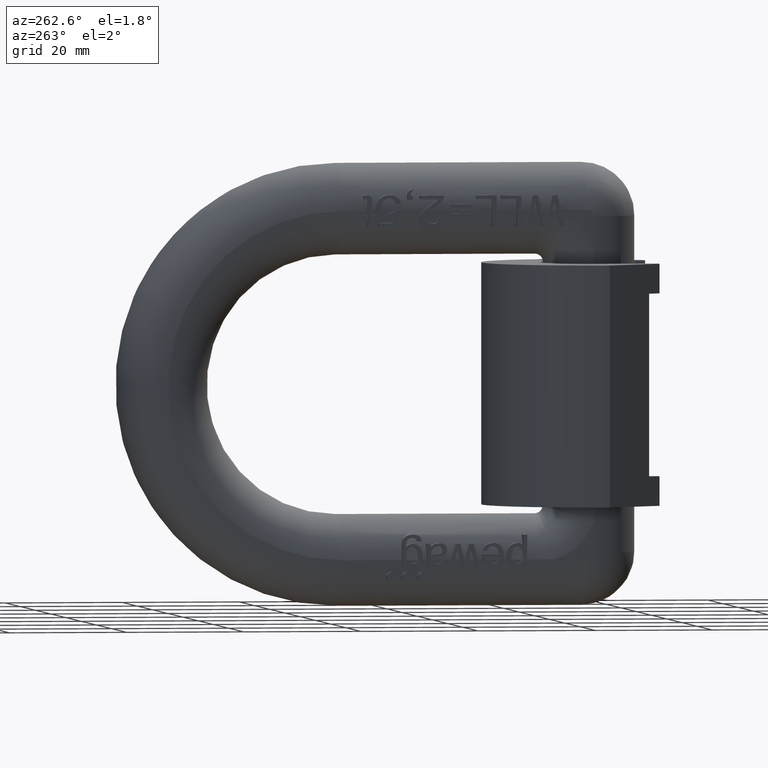
[diagram: clean part render]
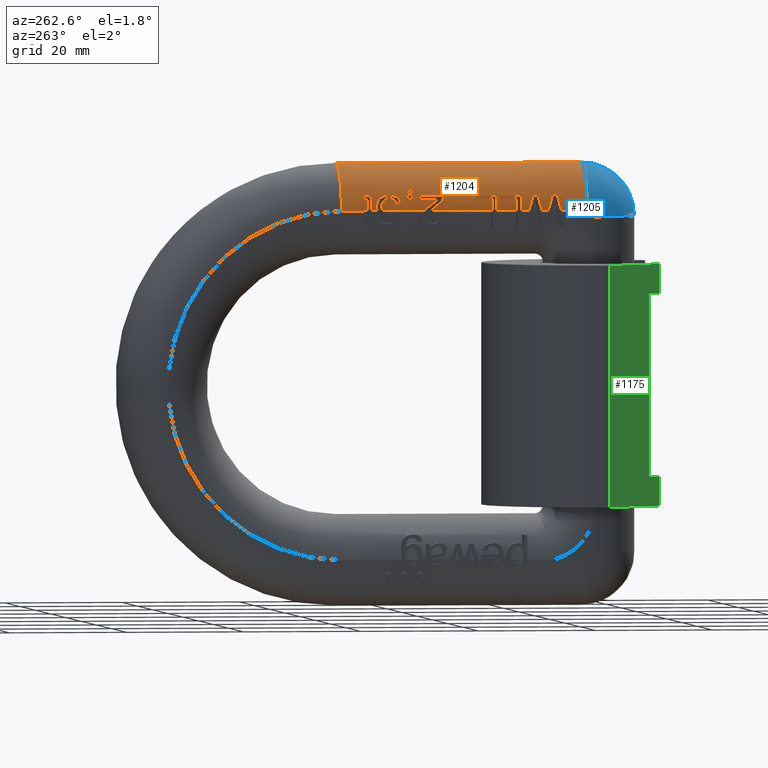
[diagram: same view with three faces highlighted in distinct colors, each labeled with its STEP entity id]
A machine part, auxiliary view with three faces highlighted in distinct colors.
Their STEP definitions:

[orange] entity #1204 — the highlighted cylindrical surface (partial cylindrical patch) has radius 7.9 mm, axis along (0, -1, -0).
#203=FACE_BOUND('',#2371,.T.);
#204=FACE_BOUND('',#2372,.T.);
#205=FACE_BOUND('',#2373,.T.);
#278=ELLIPSE('',#9136,8.19995093487426,7.9);
#279=ELLIPSE('',#9137,8.20452221586404,7.9);
#280=ELLIPSE('',#9138,8.20889471213355,7.9);
#281=ELLIPSE('',#9139,8.18101484427938,7.9);
#282=ELLIPSE('',#9141,8.00690483020782,7.9);
#283=ELLIPSE('',#9142,108.426175648776,7.9);
#284=ELLIPSE('',#9143,70.9657102516925,7.9);
#285=ELLIPSE('',#9144,8.08964639558422,7.9);
#286=ELLIPSE('',#9155,9.93877498677383,7.9);
#398=B_SPLINE_CURVE_WITH_KNOTS('',3,(#12463,#12464,#12465,#12466,#12467,
#12468,#12469,#12470,#12471,#12472),.UNSPECIFIED.,.F.,.F.,(4,3,3,4),(0.,
0.15611095960509,0.755592152615483,1.),.UNSPECIFIED.);
#399=B_SPLINE_CURVE_WITH_KNOTS('',3,(#12474,#12475,#12476,#12477,#12478,
#12479,#12480,#12481,#12482,#12483),.UNSPECIFIED.,.F.,.F.,(4,3,3,4),(0.,
0.2594963848949,0.515020583803003,1.),.UNSPECIFIED.);
#400=B_SPLINE_CURVE_WITH_KNOTS('',3,(#12485,#12486,#12487,#12488,#12489,
#12490,#12491,#12492,#12493,#12494),.UNSPECIFIED.,.F.,.F.,(4,3,3,4),(0.,
0.314000219350799,0.649300134811863,1.),.UNSPECIFIED.);
#401=B_SPLINE_CURVE_WITH_KNOTS('',3,(#12496,#12497,#12498,#12499,#12500,
#12501,#12502,#12503,#12504,#12505),.UNSPECIFIED.,.F.,.F.,(4,3,3,4),(0.,
0.31068628129509,0.65485272519181,1.),.UNSPECIFIED.);
#402=B_SPLINE_CURVE_WITH_KNOTS('',3,(#12509,#12510,#12511,#12512,#12513,
#12514,#12515,#12516,#12517,#12518,#12519,#12520,#12521,#12522,#12523,#12524),
 .UNSPECIFIED.,.F.,.F.,(4,3,3,3,3,4),(0.,0.142793714237207,0.284760607649526,
0.444886016678857,0.765931278787866,1.),.UNSPECIFIED.);
#403=B_SPLINE_CURVE_WITH_KNOTS('',3,(#12526,#12527,#12528,#12529,#12530,
#12531,#12532,#12533,#12534,#12535,#12536,#12537,#12538),.UNSPECIFIED.,
 .F.,.F.,(4,3,3,3,4),(0.,0.379541550111413,0.686883171664488,0.949753172442192,
1.),.UNSPECIFIED.);
#404=B_SPLINE_CURVE_WITH_KNOTS('',3,(#12542,#12543,#12544,#12545,#12546,
#12547,#12548,#12549,#12550,#12551,#12552,#12553,#12554),.UNSPECIFIED.,
 .F.,.F.,(4,3,3,3,4),(0.,0.292017422250418,0.585648753779201,0.862182757325543,
1.),.UNSPECIFIED.);
#405=B_SPLINE_CURVE_WITH_KNOTS('',3,(#12556,#12557,#12558,#12559,#12560,
#12561,#12562,#12563,#12564,#12565,#12566,#12567,#12568,#12569,#12570,#12571),
 .UNSPECIFIED.,.F.,.F.,(4,3,3,3,3,4),(0.,0.20628484828075,0.460926422470442,
0.727199218420896,0.926445889526381,1.),.UNSPECIFIED.);
#406=B_SPLINE_CURVE_WITH_KNOTS('',3,(#12573,#12574,#12575,#12576,#12577,
#12578,#12579,#12580,#12581,#12582),.UNSPECIFIED.,.F.,.F.,(4,3,3,4),(0.,
0.261026374131118,0.659349936590559,1.),.UNSPECIFIED.);
#407=B_SPLINE_CURVE_WITH_KNOTS('',3,(#12586,#12587,#12588,#12589,#12590,
#12591,#12592,#12593,#12594,#12595),.UNSPECIFIED.,.F.,.F.,(4,3,3,4),(0.,
0.288332530668254,0.719706849259617,1.),.UNSPECIFIED.);
#408=B_SPLINE_CURVE_WITH_KNOTS('',3,(#12597,#12598,#12599,#12600,#12601,
#12602,#12603,#12604,#12605,#12606,#12607,#12608,#12609,#12610,#12611,#12612,
#12613,#12614,#12615,#12616,#12617,#12618,#12619,#12620,#12621,#12622,#12623,
#12624),.UNSPECIFIED.,.F.,.F.,(4,3,3,3,3,3,3,3,3,4),(0.,0.0931781078712239,
0.185863827446779,0.32521098028367,0.431329613749867,0.537491665694663,
0.648009055897674,0.761221396077633,0.880634140115405,1.),.UNSPECIFIED.);
#409=B_SPLINE_CURVE_WITH_KNOTS('',3,(#12625,#12626,#12627,#12628),
 .UNSPECIFIED.,.F.,.F.,(4,4),(0.,1.),.UNSPECIFIED.);
#410=B_SPLINE_CURVE_WITH_KNOTS('',3,(#12636,#12637,#12638,#12639,#12640,
#12641,#12642,#12643,#12644,#12645),.UNSPECIFIED.,.F.,.F.,(4,3,3,4),(0.,
0.346337008765576,0.672703122863948,1.),.UNSPECIFIED.);
#411=B_SPLINE_CURVE_WITH_KNOTS('',3,(#12647,#12648,#12649,#12650,#12651,
#12652,#12653,#12654,#12655,#12656),.UNSPECIFIED.,.F.,.F.,(4,3,3,4),(0.,
0.19038797136079,0.594962802619252,1.),.UNSPECIFIED.);
#412=B_SPLINE_CURVE_WITH_KNOTS('',3,(#12658,#12659,#12660,#12661,#12662,
#12663,#12664,#12665,#12666,#12667),.UNSPECIFIED.,.F.,.F.,(4,3,3,4),(0.,
0.27016004292502,0.540233783040903,1.),.UNSPECIFIED.);
#413=B_SPLINE_CURVE_WITH_KNOTS('',3,(#12675,#12676,#12677,#12678,#12679,
#12680,#12681,#12682,#12683,#12684),.UNSPECIFIED.,.F.,.F.,(4,3,3,4),(0.,
0.361978411648367,0.677869179303933,1.),.UNSPECIFIED.);
#414=B_SPLINE_CURVE_WITH_KNOTS('',3,(#12686,#12687,#12688,#12689,#12690,
#12691,#12692,#12693,#12694,#12695,#12696,#12697,#12698),.UNSPECIFIED.,
 .F.,.F.,(4,3,3,3,4),(0.,0.37220228558075,0.676693738782447,0.93763299819061,
1.),.UNSPECIFIED.);
#415=B_SPLINE_CURVE_WITH_KNOTS('',3,(#12740,#12741,#12742,#12743,#12744,
#12745,#12746,#12747,#12748,#12749),.UNSPECIFIED.,.F.,.F.,(4,3,3,4),(0.,
0.277291417604665,0.636594682180537,1.),.UNSPECIFIED.);
#416=B_SPLINE_CURVE_WITH_KNOTS('',3,(#12751,#12752,#12753,#12754,#12755,
#12756,#12757,#12758,#12759,#12760),.UNSPECIFIED.,.F.,.F.,(4,3,3,4),(0.,
0.27958135560563,0.55660353302604,1.),.UNSPECIFIED.);
#417=B_SPLINE_CURVE_WITH_KNOTS('',3,(#12764,#12765,#12766,#12767,#12768,
#12769,#12770,#12771,#12772,#12773,#12774,#12775,#12776),.UNSPECIFIED.,
 .F.,.F.,(4,3,3,3,4),(0.,0.390441392324048,0.613989655508433,0.838185748972213,
1.),.UNSPECIFIED.);
#1120=CYLINDRICAL_SURFACE('',#9156,7.9);
#1204=ADVANCED_FACE('',(#203,#204,#205),#1120,.T.);
#2371=EDGE_LOOP('',(#3265,#3266,#3267,#3268,#3269,#3270,#3271,#3272,#3273,
#3274,#3275,#3276,#3277,#3278,#3279,#3280,#3281,#3282,#3283,#3284,#3285,
#3286,#3287,#3288,#3289,#3290,#3291,#3292,#3293,#3294,#3295,#3296,#3297,
#3298,#3299,#3300,#3301,#3302,#3303,#3304,#3305,#3306,#3307,#3308,#3309,
#3310,#3311,#3312,#3313,#3314,#3315,#3316));
#2372=EDGE_LOOP('',(#3317,#3318,#3319,#3320));
#2373=EDGE_LOOP('',(#3321,#3322,#3323,#3324,#3325,#3326,#3327));
#2856=CIRCLE('',#9132,7.9);
#2858=CIRCLE('',#9140,7.9);
#2859=CIRCLE('',#9145,7.9);
#2860=CIRCLE('',#9146,7.9);
#2861=CIRCLE('',#9147,7.9);
#2862=CIRCLE('',#9148,7.9);
#2863=CIRCLE('',#9149,7.9);
#2864=CIRCLE('',#9150,7.9);
#2865=CIRCLE('',#9151,7.9);
#2866=CIRCLE('',#9152,7.9);
#2867=CIRCLE('',#9153,7.9);
#2868=CIRCLE('',#9154,7.9);
#3265=ORIENTED_EDGE('',*,*,#6686,.F.);
#3266=ORIENTED_EDGE('',*,*,#6687,.F.);
#3267=ORIENTED_EDGE('',*,*,#6688,.F.);
#3268=ORIENTED_EDGE('',*,*,#6689,.T.);
#3269=ORIENTED_EDGE('',*,*,#6690,.F.);
#3270=ORIENTED_EDGE('',*,*,#6691,.F.);
#3271=ORIENTED_EDGE('',*,*,#6692,.F.);
#3272=ORIENTED_EDGE('',*,*,#6556,.F.);
#3273=ORIENTED_EDGE('',*,*,#6693,.F.);
#3274=ORIENTED_EDGE('',*,*,#6537,.F.);
#3275=ORIENTED_EDGE('',*,*,#6681,.T.);
#3276=ORIENTED_EDGE('',*,*,#6694,.T.);
#3277=ORIENTED_EDGE('',*,*,#6695,.F.);
#3278=ORIENTED_EDGE('',*,*,#6696,.F.);
#3279=ORIENTED_EDGE('',*,*,#6697,.F.);
#3280=ORIENTED_EDGE('',*,*,#6698,.F.);
#3281=ORIENTED_EDGE('',*,*,#6699,.F.);
#3282=ORIENTED_EDGE('',*,*,#6700,.F.);
#3283=ORIENTED_EDGE('',*,*,#6701,.F.);
#3284=ORIENTED_EDGE('',*,*,#6702,.T.);
#3285=ORIENTED_EDGE('',*,*,#6703,.F.);
#3286=ORIENTED_EDGE('',*,*,#6704,.F.);
#3287=ORIENTED_EDGE('',*,*,#6705,.F.);
#3288=ORIENTED_EDGE('',*,*,#6706,.F.);
#3289=ORIENTED_EDGE('',*,*,#6707,.F.);
#3290=ORIENTED_EDGE('',*,*,#6708,.F.);
#3291=ORIENTED_EDGE('',*,*,#6573,.T.);
#3292=ORIENTED_EDGE('',*,*,#6709,.F.);
#3293=ORIENTED_EDGE('',*,*,#6710,.F.);
#3294=ORIENTED_EDGE('',*,*,#6711,.F.);
#3295=ORIENTED_EDGE('',*,*,#6712,.T.);
#3296=ORIENTED_EDGE('',*,*,#6713,.F.);
#3297=ORIENTED_EDGE('',*,*,#6714,.F.);
#3298=ORIENTED_EDGE('',*,*,#6715,.F.);
#3299=ORIENTED_EDGE('',*,*,#6716,.F.);
#3300=ORIENTED_EDGE('',*,*,#6717,.F.);
#3301=ORIENTED_EDGE('',*,*,#6718,.F.);
#3302=ORIENTED_EDGE('',*,*,#6719,.F.);
#3303=ORIENTED_EDGE('',*,*,#6720,.F.);
#3304=ORIENTED_EDGE('',*,*,#6721,.T.);
#3305=ORIENTED_EDGE('',*,*,#6722,.F.);
#3306=ORIENTED_EDGE('',*,*,#6723,.F.);
#3307=ORIENTED_EDGE('',*,*,#6724,.F.);
#3308=ORIENTED_EDGE('',*,*,#6725,.F.);
#3309=ORIENTED_EDGE('',*,*,#6726,.F.);
#3310=ORIENTED_EDGE('',*,*,#6727,.T.);
#3311=ORIENTED_EDGE('',*,*,#6728,.F.);
#3312=ORIENTED_EDGE('',*,*,#6729,.F.);
#3313=ORIENTED_EDGE('',*,*,#6730,.F.);
#3314=ORIENTED_EDGE('',*,*,#6731,.F.);
#3315=ORIENTED_EDGE('',*,*,#6732,.F.);
#3316=ORIENTED_EDGE('',*,*,#6733,.T.);
#3317=ORIENTED_EDGE('',*,*,#6734,.F.);
#3318=ORIENTED_EDGE('',*,*,#6735,.F.);
#3319=ORIENTED_EDGE('',*,*,#6736,.F.);
#3320=ORIENTED_EDGE('',*,*,#6737,.F.);
#3321=ORIENTED_EDGE('',*,*,#6738,.F.);
#3322=ORIENTED_EDGE('',*,*,#6739,.F.);
#3323=ORIENTED_EDGE('',*,*,#6740,.F.);
#3324=ORIENTED_EDGE('',*,*,#6741,.F.);
#3325=ORIENTED_EDGE('',*,*,#6742,.F.);
#3326=ORIENTED_EDGE('',*,*,#6743,.F.);
#3327=ORIENTED_EDGE('',*,*,#6744,.F.);
#5639=VERTEX_POINT('',#11385);
#5641=VERTEX_POINT('',#11391);
#5651=VERTEX_POINT('',#11440);
#5654=VERTEX_POINT('',#11446);
#5668=VERTEX_POINT('',#11545);
#5669=VERTEX_POINT('',#11553);
#5761=VERTEX_POINT('',#12436);
#5764=VERTEX_POINT('',#12447);
#5765=VERTEX_POINT('',#12448);
#5766=VERTEX_POINT('',#12450);
#5767=VERTEX_POINT('',#12452);
#5768=VERTEX_POINT('',#12454);
#5769=VERTEX_POINT('',#12456);
#5770=VERTEX_POINT('',#12458);
#5771=VERTEX_POINT('',#12462);
#5772=VERTEX_POINT('',#12473);
#5773=VERTEX_POINT('',#12484);
#5774=VERTEX_POINT('',#12495);
#5775=VERTEX_POINT('',#12506);
#5776=VERTEX_POINT('',#12508);
#5777=VERTEX_POINT('',#12525);
#5778=VERTEX_POINT('',#12539);
#5779=VERTEX_POINT('',#12541);
#5780=VERTEX_POINT('',#12555);
#5781=VERTEX_POINT('',#12572);
#5782=VERTEX_POINT('',#12583);
#5783=VERTEX_POINT('',#12585);
#5784=VERTEX_POINT('',#12596);
#5785=VERTEX_POINT('',#12629);
#5786=VERTEX_POINT('',#12631);
#5787=VERTEX_POINT('',#12633);
#5788=VERTEX_POINT('',#12635);
#5789=VERTEX_POINT('',#12646);
#5790=VERTEX_POINT('',#12657);
#5791=VERTEX_POINT('',#12668);
#5792=VERTEX_POINT('',#12670);
#5793=VERTEX_POINT('',#12672);
#5794=VERTEX_POINT('',#12674);
#5795=VERTEX_POINT('',#12685);
#5796=VERTEX_POINT('',#12699);
#5797=VERTEX_POINT('',#12701);
#5798=VERTEX_POINT('',#12703);
#5799=VERTEX_POINT('',#12705);
#5800=VERTEX_POINT('',#12707);
#5801=VERTEX_POINT('',#12709);
#5802=VERTEX_POINT('',#12711);
#5803=VERTEX_POINT('',#12713);
#5804=VERTEX_POINT('',#12715);
#5805=VERTEX_POINT('',#12717);
#5806=VERTEX_POINT('',#12719);
#5807=VERTEX_POINT('',#12721);
#5808=VERTEX_POINT('',#12723);
#5809=VERTEX_POINT('',#12726);
#5810=VERTEX_POINT('',#12727);
#5811=VERTEX_POINT('',#12729);
#5812=VERTEX_POINT('',#12731);
#5813=VERTEX_POINT('',#12734);
#5814=VERTEX_POINT('',#12735);
#5815=VERTEX_POINT('',#12737);
#5816=VERTEX_POINT('',#12739);
#5817=VERTEX_POINT('',#12750);
#5818=VERTEX_POINT('',#12761);
#5819=VERTEX_POINT('',#12763);
#6537=EDGE_CURVE('',#5641,#5639,#7843,.T.);
#6556=EDGE_CURVE('',#5654,#5651,#7850,.T.);
#6573=EDGE_CURVE('',#5668,#5669,#7854,.T.);
#6681=EDGE_CURVE('',#5641,#5761,#2856,.T.);
#6686=EDGE_CURVE('',#5764,#5765,#278,.T.);
#6687=EDGE_CURVE('',#5766,#5764,#7882,.T.);
#6688=EDGE_CURVE('',#5767,#5766,#279,.T.);
#6689=EDGE_CURVE('',#5767,#5768,#7883,.T.);
#6690=EDGE_CURVE('',#5769,#5768,#280,.T.);
#6691=EDGE_CURVE('',#5770,#5769,#7884,.T.);
#6692=EDGE_CURVE('',#5651,#5770,#281,.T.);
#6693=EDGE_CURVE('',#5639,#5654,#2858,.T.);
#6694=EDGE_CURVE('',#5761,#5771,#7885,.T.);
#6695=EDGE_CURVE('',#5772,#5771,#398,.T.);
#6696=EDGE_CURVE('',#5773,#5772,#399,.T.);
#6697=EDGE_CURVE('',#5774,#5773,#400,.T.);
#6698=EDGE_CURVE('',#5775,#5774,#401,.T.);
#6699=EDGE_CURVE('',#5776,#5775,#282,.T.);
#6700=EDGE_CURVE('',#5777,#5776,#402,.T.);
#6701=EDGE_CURVE('',#5778,#5777,#403,.T.);
#6702=EDGE_CURVE('',#5778,#5779,#7886,.T.);
#6703=EDGE_CURVE('',#5780,#5779,#404,.T.);
#6704=EDGE_CURVE('',#5781,#5780,#405,.T.);
#6705=EDGE_CURVE('',#5782,#5781,#406,.T.);
#6706=EDGE_CURVE('',#5783,#5782,#283,.T.);
#6707=EDGE_CURVE('',#5784,#5783,#407,.T.);
#6708=EDGE_CURVE('',#5668,#5784,#408,.T.);
#6709=EDGE_CURVE('',#5785,#5669,#409,.T.);
#6710=EDGE_CURVE('',#5786,#5785,#284,.T.);
#6711=EDGE_CURVE('',#5787,#5786,#285,.T.);
#6712=EDGE_CURVE('',#5787,#5788,#7887,.T.);
#6713=EDGE_CURVE('',#5789,#5788,#410,.T.);
#6714=EDGE_CURVE('',#5790,#5789,#411,.T.);
#6715=EDGE_CURVE('',#5791,#5790,#412,.T.);
#6716=EDGE_CURVE('',#5792,#5791,#7888,.T.);
#6717=EDGE_CURVE('',#5793,#5792,#2859,.T.);
#6718=EDGE_CURVE('',#5794,#5793,#7889,.T.);
#6719=EDGE_CURVE('',#5795,#5794,#413,.T.);
#6720=EDGE_CURVE('',#5796,#5795,#414,.T.);
#6721=EDGE_CURVE('',#5796,#5797,#7890,.T.);
#6722=EDGE_CURVE('',#5798,#5797,#2860,.T.);
#6723=EDGE_CURVE('',#5799,#5798,#7891,.T.);
#6724=EDGE_CURVE('',#5800,#5799,#2861,.T.);
#6725=EDGE_CURVE('',#5801,#5800,#7892,.T.);
#6726=EDGE_CURVE('',#5802,#5801,#2862,.T.);
#6727=EDGE_CURVE('',#5802,#5803,#7893,.T.);
#6728=EDGE_CURVE('',#5804,#5803,#2863,.T.);
#6729=EDGE_CURVE('',#5805,#5804,#7894,.T.);
#6730=EDGE_CURVE('',#5806,#5805,#2864,.T.);
#6731=EDGE_CURVE('',#5807,#5806,#7895,.T.);
#6732=EDGE_CURVE('',#5808,#5807,#2865,.T.);
#6733=EDGE_CURVE('',#5808,#5765,#7896,.T.);
#6734=EDGE_CURVE('',#5809,#5810,#2866,.T.);
#6735=EDGE_CURVE('',#5811,#5809,#7897,.T.);
#6736=EDGE_CURVE('',#5812,#5811,#2867,.T.);
#6737=EDGE_CURVE('',#5810,#5812,#7898,.T.);
#6738=EDGE_CURVE('',#5813,#5814,#7899,.T.);
#6739=EDGE_CURVE('',#5815,#5813,#2868,.T.);
#6740=EDGE_CURVE('',#5816,#5815,#7900,.T.);
#6741=EDGE_CURVE('',#5817,#5816,#415,.T.);
#6742=EDGE_CURVE('',#5818,#5817,#416,.T.);
#6743=EDGE_CURVE('',#5819,#5818,#286,.T.);
#6744=EDGE_CURVE('',#5814,#5819,#417,.T.);
#7843=LINE('',#11392,#8389);
#7850=LINE('',#11447,#8396);
#7854=LINE('',#11554,#8400);
#7882=LINE('',#12449,#8428);
#7883=LINE('',#12453,#8429);
#7884=LINE('',#12457,#8430);
#7885=LINE('',#12461,#8431);
#7886=LINE('',#12540,#8432);
#7887=LINE('',#12634,#8433);
#7888=LINE('',#12669,#8434);
#7889=LINE('',#12673,#8435);
#7890=LINE('',#12700,#8436);
#7891=LINE('',#12704,#8437);
#7892=LINE('',#12708,#8438);
#7893=LINE('',#12712,#8439);
#7894=LINE('',#12716,#8440);
#7895=LINE('',#12720,#8441);
#7896=LINE('',#12724,#8442);
#7897=LINE('',#12728,#8443);
#7898=LINE('',#12732,#8444);
#7899=LINE('',#12733,#8445);
#7900=LINE('',#12738,#8446);
#8389=VECTOR('',#9664,1.);
#8396=VECTOR('',#9697,1.);
#8400=VECTOR('',#9715,1.);
#8428=VECTOR('',#9833,1.);
#8429=VECTOR('',#9836,1.);
#8430=VECTOR('',#9839,1.);
#8431=VECTOR('',#9844,1.);
#8432=VECTOR('',#9847,1.);
#8433=VECTOR('',#9854,1.);
#8434=VECTOR('',#9855,1.);
#8435=VECTOR('',#9858,1.);
#8436=VECTOR('',#9859,1.);
#8437=VECTOR('',#9862,1.);
#8438=VECTOR('',#9865,1.);
#8439=VECTOR('',#9868,1.);
#8440=VECTOR('',#9871,1.);
#8441=VECTOR('',#9874,1.);
#8442=VECTOR('',#9877,1.);
#8443=VECTOR('',#9880,1.);
#8444=VECTOR('',#9883,1.);
#8445=VECTOR('',#9884,1.);
#8446=VECTOR('',#9887,1.);
#9132=AXIS2_PLACEMENT_3D('',#12437,#9820,#9821);
#9136=AXIS2_PLACEMENT_3D('',#12446,#9831,#9832);
#9137=AXIS2_PLACEMENT_3D('',#12451,#9834,#9835);
#9138=AXIS2_PLACEMENT_3D('',#12455,#9837,#9838);
#9139=AXIS2_PLACEMENT_3D('',#12459,#9840,#9841);
#9140=AXIS2_PLACEMENT_3D('',#12460,#9842,#9843);
#9141=AXIS2_PLACEMENT_3D('',#12507,#9845,#9846);
#9142=AXIS2_PLACEMENT_3D('',#12584,#9848,#9849);
#9143=AXIS2_PLACEMENT_3D('',#12630,#9850,#9851);
#9144=AXIS2_PLACEMENT_3D('',#12632,#9852,#9853);
#9145=AXIS2_PLACEMENT_3D('',#12671,#9856,#9857);
#9146=AXIS2_PLACEMENT_3D('',#12702,#9860,#9861);
#9147=AXIS2_PLACEMENT_3D('',#12706,#9863,#9864);
#9148=AXIS2_PLACEMENT_3D('',#12710,#9866,#9867);
#9149=AXIS2_PLACEMENT_3D('',#12714,#9869,#9870);
#9150=AXIS2_PLACEMENT_3D('',#12718,#9872,#9873);
#9151=AXIS2_PLACEMENT_3D('',#12722,#9875,#9876);
#9152=AXIS2_PLACEMENT_3D('',#12725,#9878,#9879);
#9153=AXIS2_PLACEMENT_3D('',#12730,#9881,#9882);
#9154=AXIS2_PLACEMENT_3D('',#12736,#9885,#9886);
#9155=AXIS2_PLACEMENT_3D('',#12762,#9888,#9889);
#9156=AXIS2_PLACEMENT_3D('',#12777,#9890,#9891);
#9664=DIRECTION('',(0.,-1.,-1.65211759616839E-16));
#9697=DIRECTION('',(0.,1.,1.65211759616839E-16));
#9715=DIRECTION('',(0.,-1.,-1.65211759616839E-16));
#9820=DIRECTION('',(0.,-1.,0.));
#9821=DIRECTION('',(0.,0.,-1.));
#9831=DIRECTION('',(0.,-0.963420398822319,-0.267994655045664));
#9832=DIRECTION('',(0.,-0.267994655045664,0.963420398822319));
#9833=DIRECTION('',(0.,1.,1.65211759616839E-16));
#9834=DIRECTION('',(0.,0.96288361371303,-0.269916925076842));
#9835=DIRECTION('',(0.,-0.269916925076842,-0.96288361371303));
#9836=DIRECTION('',(0.,-1.,-1.65211759616839E-16));
#9837=DIRECTION('',(0.,-0.962370730413076,-0.271739907345615));
#9838=DIRECTION('',(0.,-0.271739907345615,0.962370730413076));
#9839=DIRECTION('',(0.,1.,1.65211759616839E-16));
#9840=DIRECTION('',(0.,0.965650368612169,-0.259844887575614));
#9841=DIRECTION('',(0.,-0.259844887575614,-0.965650368612168));
#9842=DIRECTION('',(0.,-1.,-2.19585250123646E-16));
#9843=DIRECTION('',(0.,2.19585250123646E-16,-1.));
#9844=DIRECTION('',(0.,-1.,-1.65211759616839E-16));
#9845=DIRECTION('',(0.,-0.986648420023116,0.162864653212074));
#9846=DIRECTION('',(0.,-0.162864653212074,-0.986648420023116));
#9847=DIRECTION('',(0.,-1.,-1.65211759616839E-16));
#9848=DIRECTION('',(0.,0.0728606349226076,0.997342131807673));
#9849=DIRECTION('',(0.,-0.997342131807673,0.0728606349226076));
#9850=DIRECTION('',(0.,0.111321368756562,-0.993784459960089));
#9851=DIRECTION('',(0.,-0.993784459960089,-0.111321368756562));
#9852=DIRECTION('',(0.,0.976556899237557,0.215259430807407));
#9853=DIRECTION('',(0.,-0.215259430807407,0.976556899237557));
#9854=DIRECTION('',(0.,-1.,-1.65211759616839E-16));
#9855=DIRECTION('',(0.,-1.,-1.65211759616839E-16));
#9856=DIRECTION('',(0.,-1.,0.));
#9857=DIRECTION('',(0.,0.,1.));
#9858=DIRECTION('',(0.,1.,1.65211759616839E-16));
#9859=DIRECTION('',(0.,-1.,-1.65211759616839E-16));
#9860=DIRECTION('',(0.,-1.,0.));
#9861=DIRECTION('',(0.,0.,1.));
#9862=DIRECTION('',(0.,-1.,-1.65211759616839E-16));
#9863=DIRECTION('',(0.,-1.,0.));
#9864=DIRECTION('',(0.,0.,1.));
#9865=DIRECTION('',(0.,1.,1.65211759616839E-16));
#9866=DIRECTION('',(0.,1.,0.));
#9867=DIRECTION('',(0.,0.,-1.));
#9868=DIRECTION('',(0.,-1.,-1.65211759616839E-16));
#9869=DIRECTION('',(0.,-1.,0.));
#9870=DIRECTION('',(0.,0.,1.));
#9871=DIRECTION('',(0.,-1.,-1.65211759616839E-16));
#9872=DIRECTION('',(0.,-1.,0.));
#9873=DIRECTION('',(0.,0.,1.));
#9874=DIRECTION('',(0.,1.,1.65211759616839E-16));
#9875=DIRECTION('',(0.,1.,0.));
#9876=DIRECTION('',(0.,0.,-1.));
#9877=DIRECTION('',(0.,-1.,-1.65211759616839E-16));
#9878=DIRECTION('',(0.,-1.,0.));
#9879=DIRECTION('',(0.,0.,1.));
#9880=DIRECTION('',(0.,1.,1.65211759616839E-16));
#9881=DIRECTION('',(0.,1.,0.));
#9882=DIRECTION('',(0.,0.,-1.));
#9883=DIRECTION('',(0.,-1.,-1.65211759616839E-16));
#9884=DIRECTION('',(0.,1.,1.65211759616839E-16));
#9885=DIRECTION('',(0.,1.,0.));
#9886=DIRECTION('',(0.,0.,-1.));
#9887=DIRECTION('',(0.,-1.,-1.65211759616839E-16));
#9888=DIRECTION('',(0.,0.794866571636146,-0.606784255971922));
#9889=DIRECTION('',(0.,-0.606784255971922,-0.794866571636146));
#9890=DIRECTION('',(0.,-1.,-1.65211759616839E-16));
#9891=DIRECTION('',(0.,2.19585250123646E-16,-1.));
#11385=CARTESIAN_POINT('',(-0.0999999999999994,12.,37.5));
#11391=CARTESIAN_POINT('',(-0.0999999999999994,54.,37.5));
#11392=CARTESIAN_POINT('',(-0.0999999999999994,12.,37.5));
#11440=CARTESIAN_POINT('',(-8.,16.4944766887962,29.6));
#11446=CARTESIAN_POINT('',(-8.,12.,29.6));
#11447=CARTESIAN_POINT('',(-8.,54.,29.6));
#11545=CARTESIAN_POINT('',(-8.,46.8749149947367,29.6));
#11553=CARTESIAN_POINT('',(-8.,44.8182868087965,29.6));
#11554=CARTESIAN_POINT('',(-8.,54.,29.6));
#12436=CARTESIAN_POINT('',(-8.,54.,29.6));
#12437=CARTESIAN_POINT('',(-0.0999999999999994,54.,29.6));
#12446=CARTESIAN_POINT('',(-0.0999999999999994,21.9360303261262,29.6));
#12447=CARTESIAN_POINT('',(-7.57142705393168,21.2220606522524,32.1666666666667));
#12448=CARTESIAN_POINT('',(-8.,21.9360303261262,29.6));
#12449=CARTESIAN_POINT('',(-7.57142705393168,12.,32.1666666666667));
#12450=CARTESIAN_POINT('',(-7.57142705393168,20.5314794015003,32.1666666666667));
#12451=CARTESIAN_POINT('',(-0.0999999999999994,19.8119876950287,29.6));
#12452=CARTESIAN_POINT('',(-8.,19.8119876950287,29.6));
#12453=CARTESIAN_POINT('',(-8.,54.,29.6));
#12454=CARTESIAN_POINT('',(-8.,18.6405881063958,29.6));
#12455=CARTESIAN_POINT('',(-0.0999999999999994,18.6405881063958,29.6));
#12456=CARTESIAN_POINT('',(-7.57142705393168,17.915851016888,32.1666666666667));
#12457=CARTESIAN_POINT('',(-7.57142705393168,12.,32.1666666666667));
#12458=CARTESIAN_POINT('',(-7.57142705393168,17.1851357856312,32.1666666666667));
#12459=CARTESIAN_POINT('',(-0.0999999999999994,16.4944766887962,29.6));
#12460=CARTESIAN_POINT('',(-0.0999999999999994,12.,29.6));
#12461=CARTESIAN_POINT('',(-8.,54.,29.6));
#12462=CARTESIAN_POINT('',(-8.,49.4860704400497,29.6));
#12463=CARTESIAN_POINT('',(-7.78481953038732,49.5220526294677,31.4312697194508));
#12464=CARTESIAN_POINT('',(-7.80525795324562,49.4841303675665,31.3455010369441));
#12465=CARTESIAN_POINT('',(-7.82717558946313,49.489072596088,31.2461971176385));
#12466=CARTESIAN_POINT('',(-7.84602803138951,49.4869387165922,31.1521113803172));
#12467=CARTESIAN_POINT('',(-7.91860273577151,49.4787240951548,30.7899172094337));
#12468=CARTESIAN_POINT('',(-7.96584987164987,49.4860704400497,30.4215381803722));
#12469=CARTESIAN_POINT('',(-7.98702090483272,49.4860704400497,30.052660189029));
#12470=CARTESIAN_POINT('',(-7.99567008027081,49.4860704400497,29.9019594445343));
#12471=CARTESIAN_POINT('',(-8.,49.4860704400497,29.7509487417205));
#12472=CARTESIAN_POINT('',(-8.,49.4860704400497,29.6));
#12473=CARTESIAN_POINT('',(-7.78481953038732,49.5220526294677,31.4312697194508));
#12474=CARTESIAN_POINT('',(-7.75312213251962,49.6355349191704,31.5595207640488));
#12475=CARTESIAN_POINT('',(-7.75511930157833,49.6224629641773,31.5517206023939));
#12476=CARTESIAN_POINT('',(-7.75734252638353,49.609921913836,31.5429885186758));
#12477=CARTESIAN_POINT('',(-7.75977691566669,49.598227593107,31.5333436327284));
#12478=CARTESIAN_POINT('',(-7.76217324276653,49.5867161155175,31.5238495465809));
#12479=CARTESIAN_POINT('',(-7.76478963554517,49.5759594523192,31.5134088703262));
#12480=CARTESIAN_POINT('',(-7.76757338794193,49.5662264174389,31.5021877774091));
#12481=CARTESIAN_POINT('',(-7.77281152145171,49.5479119523244,31.4810732620184));
#12482=CARTESIAN_POINT('',(-7.77874046372288,49.5330499877652,31.4567801779776));
#12483=CARTESIAN_POINT('',(-7.78481953038732,49.5220526294677,31.4312697194508));
#12484=CARTESIAN_POINT('',(-7.75312213251962,49.6355349191704,31.5595207640488));
#12485=CARTESIAN_POINT('',(-7.741094641444,49.8624994985759,31.6059094397544));
#12486=CARTESIAN_POINT('',(-7.741094641444,49.8379094878437,31.6059094397544));
#12487=CARTESIAN_POINT('',(-7.74133716507771,49.8132789888263,31.6049867910345));
#12488=CARTESIAN_POINT('',(-7.74194253523444,49.7888052067873,31.6026767807548));
#12489=CARTESIAN_POINT('',(-7.74258802299215,49.7627095585045,31.6002136871598));
#12490=CARTESIAN_POINT('',(-7.74364832076156,49.7366452798847,31.5961678230192));
#12491=CARTESIAN_POINT('',(-7.74534956434302,49.7113107736605,31.5896306287852));
#12492=CARTESIAN_POINT('',(-7.74712109356155,49.6849295907998,31.5828233551419));
#12493=CARTESIAN_POINT('',(-7.74963715653369,49.6589451941535,31.5731317179813));
#12494=CARTESIAN_POINT('',(-7.75312213251962,49.6355349191704,31.5595207640488));
#12495=CARTESIAN_POINT('',(-7.741094641444,49.8624994985759,31.6059094397544));
#12496=CARTESIAN_POINT('',(-7.74749954484127,50.1545088050062,31.5813507290867));
#12497=CARTESIAN_POINT('',(-7.74643965319936,50.1244245850898,31.5854416357244));
#12498=CARTESIAN_POINT('',(-7.74545390824056,50.0942938268179,31.5892326746751));
#12499=CARTESIAN_POINT('',(-7.74457664088151,50.0641139966426,31.5925982991282));
#12500=CARTESIAN_POINT('',(-7.74360493050428,50.0306851293061,31.5963262529535));
#12501=CARTESIAN_POINT('',(-7.74276320535918,49.9971850056955,31.5995441133816));
#12502=CARTESIAN_POINT('',(-7.74213863907902,49.9636252607481,31.6019283256639));
#12503=CARTESIAN_POINT('',(-7.74151246978037,49.9299793810006,31.6043186572909));
#12504=CARTESIAN_POINT('',(-7.741094641444,49.8962359921291,31.6059094397544));
#12505=CARTESIAN_POINT('',(-7.741094641444,49.8624994985759,31.6059094397544));
#12506=CARTESIAN_POINT('',(-7.74749954484127,50.1545088050062,31.5813507290867));
#12507=CARTESIAN_POINT('',(-0.0999999999999994,49.8274500545583,29.6));
#12508=CARTESIAN_POINT('',(-7.57376709475491,50.25,32.1598448025923));
#12509=CARTESIAN_POINT('',(-7.68521308042696,48.9075875486381,31.8078366163554));
#12510=CARTESIAN_POINT('',(-7.66671565164181,48.9355204144542,31.8713861280068));
#12511=CARTESIAN_POINT('',(-7.64849818008088,48.9755557713782,31.9308723707006));
#12512=CARTESIAN_POINT('',(-7.63257463666659,49.0242400308,31.9812432347509));
#12513=CARTESIAN_POINT('',(-7.61669723613549,49.0727832140783,32.031468135253));
#12514=CARTESIAN_POINT('',(-7.60265384080793,49.1306188875577,32.0741625916571));
#12515=CARTESIAN_POINT('',(-7.59122725744528,49.1925534350691,32.108289093647));
#12516=CARTESIAN_POINT('',(-7.57839412512405,49.2621117814483,32.1466163785229));
#12517=CARTESIAN_POINT('',(-7.56979511338511,49.3402587437801,32.1714695182409));
#12518=CARTESIAN_POINT('',(-7.56417375850633,49.4188559091752,32.1876843128221));
#12519=CARTESIAN_POINT('',(-7.55294424382518,49.5758657478592,32.220075840795));
#12520=CARTESIAN_POINT('',(-7.55166857553105,49.7401951441215,32.2235114588378));
#12521=CARTESIAN_POINT('',(-7.55606478706665,49.9003527799567,32.2109572748445));
#12522=CARTESIAN_POINT('',(-7.55929092373076,50.017883616865,32.2017444530909));
#12523=CARTESIAN_POINT('',(-7.56569386390464,50.1347263055702,32.1834155468093));
#12524=CARTESIAN_POINT('',(-7.57376709475491,50.25,32.1598448025923));
#12525=CARTESIAN_POINT('',(-7.68521308042696,48.9075875486381,31.8078366163554));
#12526=CARTESIAN_POINT('',(-8.,48.8259356572666,29.6));
#12527=CARTESIAN_POINT('',(-8.,48.8259356572666,29.8838610544723));
#12528=CARTESIAN_POINT('',(-7.98465607437454,48.8259356572666,30.1681335116632));
#12529=CARTESIAN_POINT('',(-7.95410165289779,48.8259356572666,30.4503453568688));
#12530=CARTESIAN_POINT('',(-7.929347205655,48.8259356572666,30.6789865124129));
#12531=CARTESIAN_POINT('',(-7.89456279282268,48.8236814538511,30.9067793709394));
#12532=CARTESIAN_POINT('',(-7.84995726618177,48.8265283992934,31.132371486408));
#12533=CARTESIAN_POINT('',(-7.81188595942229,48.828958298488,31.324916833976));
#12534=CARTESIAN_POINT('',(-7.7658551707464,48.8325994417863,31.5187012307826));
#12535=CARTESIAN_POINT('',(-7.71481170394349,48.8747791503284,31.70348347117));
#12536=CARTESIAN_POINT('',(-7.70498875316143,48.8828963341123,31.7390434941546));
#12537=CARTESIAN_POINT('',(-7.69492270045845,48.8927603580895,31.7744783794627));
#12538=CARTESIAN_POINT('',(-7.68521308042696,48.9075875486381,31.8078366163554));
#12539=CARTESIAN_POINT('',(-8.,48.8259356572666,29.6));
#12540=CARTESIAN_POINT('',(-8.,54.,29.6));
#12541=CARTESIAN_POINT('',(-8.,47.812004900833,29.6));
#12542=CARTESIAN_POINT('',(-7.74001896044986,47.4910179994098,31.610002558199));
#12543=CARTESIAN_POINT('',(-7.77996689818724,47.6326067790009,31.4581604620288));
#12544=CARTESIAN_POINT('',(-7.8212550359102,47.753203380857,31.2822358769123));
#12545=CARTESIAN_POINT('',(-7.85791310126188,47.8368835294303,31.091571088909));
#12546=CARTESIAN_POINT('',(-7.89471258829289,47.9208865042909,30.9001707428709));
#12547=CARTESIAN_POINT('',(-7.92743729715039,47.9691545935937,30.6890903167995));
#12548=CARTESIAN_POINT('',(-7.95099939261421,47.9815010719432,30.4785263440397));
#12549=CARTESIAN_POINT('',(-7.97324233098528,47.9931563153169,30.2797510917937));
#12550=CARTESIAN_POINT('',(-7.98807915747377,47.976444051187,30.0747866866578));
#12551=CARTESIAN_POINT('',(-7.99496532987808,47.9223422812402,29.8819972340698));
#12552=CARTESIAN_POINT('',(-7.99843503957326,47.8950822266425,29.7848571403433));
#12553=CARTESIAN_POINT('',(-8.00000000000048,47.8580842648486,29.6898222660772));
#12554=CARTESIAN_POINT('',(-8.00000000000049,47.812004900833,29.6000000000005));
#12555=CARTESIAN_POINT('',(-7.74001896044986,47.4910179994098,31.610002558199));
#12556=CARTESIAN_POINT('',(-7.67277394362569,44.4683564473296,31.8501321736164));
#12557=CARTESIAN_POINT('',(-7.63282318138647,44.6458941551154,31.9845856492213));
#12558=CARTESIAN_POINT('',(-7.59886618154794,44.8534111009932,32.0863107207835));
#12559=CARTESIAN_POINT('',(-7.57664241085453,45.0689532758579,32.1514345494666));
#12560=CARTESIAN_POINT('',(-7.54920109949525,45.3350989274269,32.2318476928729));
#12561=CARTESIAN_POINT('',(-7.53817635362153,45.6201334182659,32.2614935587812));
#12562=CARTESIAN_POINT('',(-7.53949792742352,45.8994851249779,32.2577943087947));
#12563=CARTESIAN_POINT('',(-7.54087495607159,46.1905587694841,32.253939833774));
#12564=CARTESIAN_POINT('',(-7.55760384063428,46.4877417224463,32.2088132103432));
#12565=CARTESIAN_POINT('',(-7.5920053460779,46.7578883667102,32.1059640648541));
#12566=CARTESIAN_POINT('',(-7.61787362072866,46.9610256277018,32.0286264626533));
#12567=CARTESIAN_POINT('',(-7.65417275693092,47.1529231714479,31.9163421120966));
#12568=CARTESIAN_POINT('',(-7.69407778188488,47.3170822324867,31.777150119464));
#12569=CARTESIAN_POINT('',(-7.70900017023595,47.3784691195514,31.7250996077348));
#12570=CARTESIAN_POINT('',(-7.72446713239069,47.4365741088643,31.6691150507464));
#12571=CARTESIAN_POINT('',(-7.74001896044986,47.4910179994098,31.610002558199));
#12572=CARTESIAN_POINT('',(-7.67277394362569,44.4683564473296,31.8501321736164));
#12573=CARTESIAN_POINT('',(-7.91294793023706,43.8549011507819,30.7695489042381));
#12574=CARTESIAN_POINT('',(-7.89625467188895,43.8675683579127,30.8810650262122));
#12575=CARTESIAN_POINT('',(-7.87719670104237,43.8903567419757,30.9917324604255));
#12576=CARTESIAN_POINT('',(-7.85667971159853,43.9245210561716,31.0979719128461));
#12577=CARTESIAN_POINT('',(-7.82565188204521,43.9761877259125,31.2586377664093));
#12578=CARTESIAN_POINT('',(-7.79059875030496,44.0560455463759,31.4120795481869));
#12579=CARTESIAN_POINT('',(-7.75670625411403,44.1585358401634,31.5454689250181));
#12580=CARTESIAN_POINT('',(-7.7275697986493,44.2466439530532,31.6601401376551));
#12581=CARTESIAN_POINT('',(-7.69882119680886,44.3526047228301,31.762470674207));
#12582=CARTESIAN_POINT('',(-7.67277394362569,44.4683564473296,31.8501321736164));
#12583=CARTESIAN_POINT('',(-7.91294793023706,43.8549011507819,30.7695489042381));
#12584=CARTESIAN_POINT('',(-0.0999999999999994,59.8641000638182,29.6));
#12585=CARTESIAN_POINT('',(-7.92150520587703,44.6579699026261,30.7108808731986));
#12586=CARTESIAN_POINT('',(-7.77627963478236,45.0722514015934,31.4667434126375));
#12587=CARTESIAN_POINT('',(-7.78899137134134,45.0052972671368,31.4144711807872));
#12588=CARTESIAN_POINT('',(-7.80331258217846,44.9448331669461,31.3532006632983));
#12589=CARTESIAN_POINT('',(-7.81800135019487,44.8934568489495,31.2859582315081));
#12590=CARTESIAN_POINT('',(-7.83983936411415,44.8170748987221,31.1859878895597));
#12591=CARTESIAN_POINT('',(-7.8628350181391,44.7592469349092,31.0707315923251));
#12592=CARTESIAN_POINT('',(-7.88354699799074,44.7186731141385,30.9514422407448));
#12593=CARTESIAN_POINT('',(-7.89711738936714,44.6920893383991,30.8732844209913));
#12594=CARTESIAN_POINT('',(-7.90991466244325,44.6723043976634,30.7924877295173));
#12595=CARTESIAN_POINT('',(-7.92150520587703,44.6579699026261,30.7108808731986));
#12596=CARTESIAN_POINT('',(-7.77627963478236,45.0722514015934,31.4667434126375));
#12597=CARTESIAN_POINT('',(-8.,46.8749149947367,29.6));
#12598=CARTESIAN_POINT('',(-8.,46.9564537381362,29.6858283190308));
#12599=CARTESIAN_POINT('',(-7.99852382177403,47.0241208384928,29.7872550240583));
#12600=CARTESIAN_POINT('',(-7.99446980825698,47.0717869675152,29.8955443224273));
#12601=CARTESIAN_POINT('',(-7.99042613308299,47.119331540753,30.0035574668291));
#12602=CARTESIAN_POINT('',(-7.98370376762887,47.148548660698,30.1205487762583));
#12603=CARTESIAN_POINT('',(-7.97423989230058,47.16224365713,30.2374528362962));
#12604=CARTESIAN_POINT('',(-7.96007413055766,47.1827426651787,30.4124377134035));
#12605=CARTESIAN_POINT('',(-7.93922038675669,47.1742711370887,30.5931295643541));
#12606=CARTESIAN_POINT('',(-7.91384549892782,47.1347998612422,30.7635370724156));
#12607=CARTESIAN_POINT('',(-7.89447703254917,47.1046717249401,30.8936078775682));
#12608=CARTESIAN_POINT('',(-7.87208293436549,47.053408772488,31.0205086057351));
#12609=CARTESIAN_POINT('',(-7.84985966512241,46.9821106742156,31.1328650204466));
#12610=CARTESIAN_POINT('',(-7.82761666386166,46.9107492704359,31.245321196302));
#12611=CARTESIAN_POINT('',(-7.80524718896884,46.8175946441719,31.3454467688304));
#12612=CARTESIAN_POINT('',(-7.7853034789242,46.7135998048303,31.4292376654867));
#12613=CARTESIAN_POINT('',(-7.76456317348703,46.6054511841871,31.5163753537913));
#12614=CARTESIAN_POINT('',(-7.74601790275957,46.4814698585498,31.5876858734217));
#12615=CARTESIAN_POINT('',(-7.7331717401949,46.3501901555502,31.6358509731044));
#12616=CARTESIAN_POINT('',(-7.72000718744548,46.2156567050848,31.6852098374548));
#12617=CARTESIAN_POINT('',(-7.7125830826239,46.0706478222707,31.7115442579264));
#12618=CARTESIAN_POINT('',(-7.71088047674119,45.9268823563278,31.7176634219719));
#12619=CARTESIAN_POINT('',(-7.70908505617312,45.7752797587139,31.724116161915));
#12620=CARTESIAN_POINT('',(-7.71310283229081,45.6201038816341,31.7100882893026));
#12621=CARTESIAN_POINT('',(-7.72423715711829,45.4744299810732,31.6690596347174));
#12622=CARTESIAN_POINT('',(-7.73532124499972,45.3294133463992,31.6282160972666));
#12623=CARTESIAN_POINT('',(-7.75403156428153,45.1903871785834,31.5582302283094));
#12624=CARTESIAN_POINT('',(-7.77627963478236,45.0722514015934,31.4667434126375));
#12625=CARTESIAN_POINT('',(-7.99899825476937,44.7089583948067,29.7258037008613));
#12626=CARTESIAN_POINT('',(-7.99970935939415,44.7420137298372,29.6811546631019));
#12627=CARTESIAN_POINT('',(-8.,44.7787459204919,29.6390283943903));
#12628=CARTESIAN_POINT('',(-8.,44.8182868087965,29.6));
#12629=CARTESIAN_POINT('',(-7.99899825476937,44.7089583948067,29.7258037008613));
#12630=CARTESIAN_POINT('',(-0.0999999999999994,43.5858877362453,29.6));
#12631=CARTESIAN_POINT('',(-7.99987008710359,43.9903393331366,29.6453057047838));
#12632=CARTESIAN_POINT('',(-0.0999999999999994,44.000325930161,29.6));
#12633=CARTESIAN_POINT('',(-8.,44.000325930161,29.6));
#12634=CARTESIAN_POINT('',(-8.,54.,29.6));
#12635=CARTESIAN_POINT('',(-8.,39.9196378314298,29.6));
#12636=CARTESIAN_POINT('',(-7.94721830488578,38.7687990557687,30.5116824422273));
#12637=CARTESIAN_POINT('',(-7.95876401393696,38.9059245260202,30.4123038700262));
#12638=CARTESIAN_POINT('',(-7.96853940071064,39.0423894099356,30.311768605453));
#12639=CARTESIAN_POINT('',(-7.97645488057497,39.1776149635771,30.2094739652083));
#12640=CARTESIAN_POINT('',(-7.98391356251434,39.305036725994,30.1130826915566));
#12641=CARTESIAN_POINT('',(-7.98972759724012,39.431445540504,30.0151495645765));
#12642=CARTESIAN_POINT('',(-7.99373822616223,39.5556731360275,29.9144786428761));
#12643=CARTESIAN_POINT('',(-7.99775892254392,39.680212567006,29.8135550175588));
#12644=CARTESIAN_POINT('',(-8.00000000000009,39.8030897873985,29.7101288674588));
#12645=CARTESIAN_POINT('',(-8.0000000000001,39.9196378314292,29.6000000000006));
#12646=CARTESIAN_POINT('',(-7.94721830488578,38.7687990557687,30.5116824422273));
#12647=CARTESIAN_POINT('',(-7.83978404443517,37.8860607848923,31.1829538671442));
#12648=CARTESIAN_POINT('',(-7.84942472956183,37.9379102385742,31.1358161567728));
#12649=CARTESIAN_POINT('',(-7.85802058643365,37.9926393503897,31.0916734121373));
#12650=CARTESIAN_POINT('',(-7.86616211537995,38.0476873693386,31.0480075958493));
#12651=CARTESIAN_POINT('',(-7.88346362641826,38.1646695619666,30.9552136492224));
#12652=CARTESIAN_POINT('',(-7.89848936784446,38.2844829241187,30.8655664913436));
#12653=CARTESIAN_POINT('',(-7.91188948105482,38.4048985701617,30.7765979499323));
#12654=CARTESIAN_POINT('',(-7.92530598844339,38.5254615370168,30.6875205612225));
#12655=CARTESIAN_POINT('',(-7.93702983106231,38.6469148216006,30.599378743684));
#12656=CARTESIAN_POINT('',(-7.94721830488578,38.7687990557687,30.5116824422273));
#12657=CARTESIAN_POINT('',(-7.83978404443517,37.8860607848923,31.1829538671442));
#12658=CARTESIAN_POINT('',(-7.7586783694988,37.5626025376217,31.5376907990108));
#12659=CARTESIAN_POINT('',(-7.76754922863671,37.5875473813713,31.502628932054));
#12660=CARTESIAN_POINT('',(-7.77594096952445,37.6139472919567,31.4684491090558));
#12661=CARTESIAN_POINT('',(-7.78389302818427,37.6414869204152,31.4351533808994));
#12662=CARTESIAN_POINT('',(-7.79184352433751,37.6690211375894,31.401864195048));
#12663=CARTESIAN_POINT('',(-7.79936442741417,37.6977282531086,31.369417612847));
#12664=CARTESIAN_POINT('',(-7.80649669998491,37.7273633441151,31.3377884258809));
#12665=CARTESIAN_POINT('',(-7.81863122598883,37.7777831477442,31.2839759575663));
#12666=CARTESIAN_POINT('',(-7.82966545285034,37.830969210144,31.2324282803447));
#12667=CARTESIAN_POINT('',(-7.83978404443517,37.8860607848923,31.1829538671442));
#12668=CARTESIAN_POINT('',(-7.7586783694988,37.5626025376217,31.5376907990108));
#12669=CARTESIAN_POINT('',(-7.7586783694988,12.,31.5376907990108));
#12670=CARTESIAN_POINT('',(-7.7586783694988,40.6171318973148,31.5376907990108));
#12671=CARTESIAN_POINT('',(-0.0999999999999994,40.6171318973148,29.6));
#12672=CARTESIAN_POINT('',(-7.57142705393168,40.6171318973148,32.1666666666667));
#12673=CARTESIAN_POINT('',(-7.57142705393168,12.,32.1666666666667));
#12674=CARTESIAN_POINT('',(-7.57142705393168,36.4998111537327,32.1666666666667));
#12675=CARTESIAN_POINT('',(-7.71236229938992,36.5890410150487,31.7123305193144));
#12676=CARTESIAN_POINT('',(-7.69794804144617,36.5655762078394,31.7642762506956));
#12677=CARTESIAN_POINT('',(-7.68242264490618,36.5465183321823,31.8181344078859));
#12678=CARTESIAN_POINT('',(-7.66601309342207,36.5322596651423,31.8727617275391));
#12679=CARTESIAN_POINT('',(-7.65167962076882,36.5198049545862,31.9204777905363));
#12680=CARTESIAN_POINT('',(-7.63659641551284,36.5109300492748,31.9690342432128));
#12681=CARTESIAN_POINT('',(-7.62096542550508,36.5055807422759,32.0176598330529));
#12682=CARTESIAN_POINT('',(-7.60502346168272,36.5001250124336,32.0672528142835));
#12683=CARTESIAN_POINT('',(-7.58843707170818,36.4983026325757,32.1171514301719));
#12684=CARTESIAN_POINT('',(-7.57142705393168,36.4998111537327,32.1666666666667));
#12685=CARTESIAN_POINT('',(-7.71236229938992,36.5890410150487,31.7123305193144));
#12686=CARTESIAN_POINT('',(-8.,38.8900579638039,29.6));
#12687=CARTESIAN_POINT('',(-8.,38.5835031196302,29.8482228192253));
#12688=CARTESIAN_POINT('',(-7.98918344124844,38.2590343767782,30.0737442911397));
#12689=CARTESIAN_POINT('',(-7.96852962026614,37.9397517160925,30.3044441887009));
#12690=CARTESIAN_POINT('',(-7.95165587607161,37.6789043916785,30.492921229365));
#12691=CARTESIAN_POINT('',(-7.92765362870469,37.422516917859,30.6896123627974));
#12692=CARTESIAN_POINT('',(-7.89082423163993,37.1892076539622,30.9088383367292));
#12693=CARTESIAN_POINT('',(-7.85946296282973,36.9905382451713,31.0955154274936));
#12694=CARTESIAN_POINT('',(-7.81736732780098,36.8085506977886,31.3058803494294));
#12695=CARTESIAN_POINT('',(-7.75836841642724,36.6762058429255,31.5389154696043));
#12696=CARTESIAN_POINT('',(-7.7440731554922,36.6441390778001,31.5953791868554));
#12697=CARTESIAN_POINT('',(-7.72874163265279,36.6148918274771,31.6533031001324));
#12698=CARTESIAN_POINT('',(-7.71236229939055,36.5890410150487,31.7123305193145));
#12699=CARTESIAN_POINT('',(-8.,38.8900579638039,29.6));
#12700=CARTESIAN_POINT('',(-8.,54.,29.6));
#12701=CARTESIAN_POINT('',(-8.,28.2621144049099,29.6));
#12702=CARTESIAN_POINT('',(-0.0999999999999994,28.2621144049099,29.6));
#12703=CARTESIAN_POINT('',(-7.7586783694988,28.2621144049099,31.5376907990108));
#12704=CARTESIAN_POINT('',(-7.7586783694988,12.,31.5376907990108));
#12705=CARTESIAN_POINT('',(-7.7586783694988,30.9275642825625,31.5376907990108));
#12706=CARTESIAN_POINT('',(-0.0999999999999994,30.9275642825625,29.6));
#12707=CARTESIAN_POINT('',(-7.57142705393168,30.9275642825625,32.1666666666667));
#12708=CARTESIAN_POINT('',(-7.57142705393168,12.,32.1666666666667));
#12709=CARTESIAN_POINT('',(-7.57142705393168,27.5466224076377,32.1666666666667));
#12710=CARTESIAN_POINT('',(-0.0999999999999994,27.5466224076377,29.6));
#12711=CARTESIAN_POINT('',(-8.,27.5466224076377,29.6));
#12712=CARTESIAN_POINT('',(-8.,54.,29.6));
#12713=CARTESIAN_POINT('',(-8.,24.0591178948213,29.6));
#12714=CARTESIAN_POINT('',(-0.0999999999999994,24.0591178948213,29.6));
#12715=CARTESIAN_POINT('',(-7.7586783694988,24.0591178948213,31.5376907990108));
#12716=CARTESIAN_POINT('',(-7.7586783694988,12.,31.5376907990108));
#12717=CARTESIAN_POINT('',(-7.7586783694988,26.7245677724738,31.5376907990108));
#12718=CARTESIAN_POINT('',(-0.0999999999999994,26.7245677724738,29.6));
#12719=CARTESIAN_POINT('',(-7.57142705393168,26.7245677724738,32.1666666666667));
#12720=CARTESIAN_POINT('',(-7.57142705393168,12.,32.1666666666667));
#12721=CARTESIAN_POINT('',(-7.57142705393168,23.343625897549,32.1666666666667));
#12722=CARTESIAN_POINT('',(-0.0999999999999994,23.343625897549,29.6));
#12723=CARTESIAN_POINT('',(-8.,23.343625897549,29.6));
#12724=CARTESIAN_POINT('',(-8.,54.,29.6));
#12725=CARTESIAN_POINT('',(-0.0999999999999994,35.1886858678647,29.6));
#12726=CARTESIAN_POINT('',(-7.92997976569109,35.1886858678647,30.6494840965294));
#12727=CARTESIAN_POINT('',(-7.9878350168997,35.1886858678647,30.0382450754669));
#12728=CARTESIAN_POINT('',(-7.92997976569109,12.,30.6494840965294));
#12729=CARTESIAN_POINT('',(-7.92997976569109,31.6167616029524,30.6494840965294));
#12730=CARTESIAN_POINT('',(-0.0999999999999994,31.6167616029524,29.6));
#12731=CARTESIAN_POINT('',(-7.9878350168997,31.6167616029524,30.0382450754669));
#12732=CARTESIAN_POINT('',(-7.9878350168997,12.,30.0382450754669));
#12733=CARTESIAN_POINT('',(-7.57142705393168,12.,32.1666666666667));
#12734=CARTESIAN_POINT('',(-7.57142705393168,41.8488226615521,32.1666666666667));
#12735=CARTESIAN_POINT('',(-7.57142705393168,42.282224845087,32.1666666666667));
#12736=CARTESIAN_POINT('',(-0.0999999999999994,41.8488226615521,29.6));
#12737=CARTESIAN_POINT('',(-7.78741234953152,41.8488226615521,31.4203547369319));
#12738=CARTESIAN_POINT('',(-7.78741234953152,12.,31.4203547369319));
#12739=CARTESIAN_POINT('',(-7.78741234953152,42.7204071997639,31.4203547369319));
#12740=CARTESIAN_POINT('',(-7.30901435179088,42.5499144290351,32.8311162275092));
#12741=CARTESIAN_POINT('',(-7.35776628886139,42.6226490170113,32.722344710401));
#12742=CARTESIAN_POINT('',(-7.41110905069521,42.6684543990598,32.5960907763409));
#12743=CARTESIAN_POINT('',(-7.46098748173559,42.693410828244,32.4680765843561));
#12744=CARTESIAN_POINT('',(-7.52598792092078,42.7259334802928,32.3012513950431));
#12745=CARTESIAN_POINT('',(-7.58707599302026,42.7204071997639,32.1272131881817));
#12746=CARTESIAN_POINT('',(-7.64128732356141,42.7204071997639,31.9535049401886));
#12747=CARTESIAN_POINT('',(-7.69618381953715,42.7204071997639,31.7776012307293));
#12748=CARTESIAN_POINT('',(-7.74495180705124,42.7204071997639,31.5996668742908));
#12749=CARTESIAN_POINT('',(-7.78741234953152,42.7204071997639,31.4203547369319));
#12750=CARTESIAN_POINT('',(-7.30901435179088,42.5499144290351,32.8311162275092));
#12751=CARTESIAN_POINT('',(-7.12111044115602,42.0113484803777,33.2213268525625));
#12752=CARTESIAN_POINT('',(-7.13273594987022,42.071852621051,33.1987870532181));
#12753=CARTESIAN_POINT('',(-7.14597214194263,42.1309875308271,33.1728681379498));
#12754=CARTESIAN_POINT('',(-7.16091545517552,42.1875011560668,33.1430880506789));
#12755=CARTESIAN_POINT('',(-7.17571092567098,42.2434556597162,33.1136025948298));
#12756=CARTESIAN_POINT('',(-7.19227773979371,42.2971513932159,33.0801352999267));
#12757=CARTESIAN_POINT('',(-7.21048226159635,42.3468903152306,33.0425342420263));
#12758=CARTESIAN_POINT('',(-7.23937098295388,42.4258209168846,32.9828651940717));
#12759=CARTESIAN_POINT('',(-7.27310579862171,42.4959057460187,32.9112325888287));
#12760=CARTESIAN_POINT('',(-7.30901435179088,42.5499144290351,32.8311162275092));
#12761=CARTESIAN_POINT('',(-7.12111044115602,42.0113484803777,33.2213268525625));
#12762=CARTESIAN_POINT('',(-0.0999999999999994,39.2469044865383,29.6));
#12763=CARTESIAN_POINT('',(-7.25845696356978,41.7978341693715,32.9416304255138));
#12764=CARTESIAN_POINT('',(-7.57142705393168,42.282224845087,32.1666666666667));
#12765=CARTESIAN_POINT('',(-7.52799675028635,42.2776679284978,32.2930899182054));
#12766=CARTESIAN_POINT('',(-7.48051140845667,42.2621900570146,32.4203194882984));
#12767=CARTESIAN_POINT('',(-7.43324393158561,42.220487193209,32.5382875012248));
#12768=CARTESIAN_POINT('',(-7.40614521868069,42.1965787045739,32.6059192329328));
#12769=CARTESIAN_POINT('',(-7.37882503251158,42.161968238574,32.6712287441503));
#12770=CARTESIAN_POINT('',(-7.35461575617335,42.1157064358496,32.7273871251064));
#12771=CARTESIAN_POINT('',(-7.33033335304669,42.0693048942494,32.783715138644));
#12772=CARTESIAN_POINT('',(-7.30854350995095,42.0108893797376,32.832444487808));
#12773=CARTESIAN_POINT('',(-7.29099179404313,41.9467124239327,32.8710299628716));
#12774=CARTESIAN_POINT('',(-7.27821613869983,41.8999988904724,32.8991158054899));
#12775=CARTESIAN_POINT('',(-7.26739587387921,41.8496762245867,32.922481448337));
#12776=CARTESIAN_POINT('',(-7.25845696356978,41.7978341693715,32.9416304255138));
#12777=CARTESIAN_POINT('',(-0.0999999999999994,12.,29.6));

[blue] entity #1205 — the highlighted face is a freeform B-spline surface patch.
#247=(
BOUNDED_SURFACE()
B_SPLINE_SURFACE(3,3,((#12778,#12779,#12780,#12781),(#12782,#12783,#12784,
#12785),(#12786,#12787,#12788,#12789),(#12790,#12791,#12792,#12793)),
 .UNSPECIFIED.,.F.,.F.,.F.)
B_SPLINE_SURFACE_WITH_KNOTS((4,4),(4,4),(0.,1.),(0.,1.),.UNSPECIFIED.)
GEOMETRIC_REPRESENTATION_ITEM()
RATIONAL_B_SPLINE_SURFACE(((1.,0.804737854124365,0.804737854124365,1.),
(0.804737854124365,0.647603013860688,0.647603013860688,0.804737854124365),
(0.804737854124365,0.647603013860688,0.647603013860688,0.804737854124365),
(1.,0.804737854124365,0.804737854124365,1.)))
REPRESENTATION_ITEM('')
SURFACE()
);
#1205=ADVANCED_FACE('',(#1911),#247,.T.);
#1911=FACE_OUTER_BOUND('',#2374,.T.);
#2374=EDGE_LOOP('',(#3328,#3329,#3330,#3331));
#2831=CIRCLE('',#9070,9.);
#2839=CIRCLE('',#9084,1.1);
#2857=CIRCLE('',#9134,7.9);
#2858=CIRCLE('',#9140,7.9);
#3328=ORIENTED_EDGE('',*,*,#6682,.T.);
#3329=ORIENTED_EDGE('',*,*,#6534,.F.);
#3330=ORIENTED_EDGE('',*,*,#6693,.T.);
#3331=ORIENTED_EDGE('',*,*,#6555,.F.);
#5637=VERTEX_POINT('',#11379);
#5639=VERTEX_POINT('',#11385);
#5653=VERTEX_POINT('',#11444);
#5654=VERTEX_POINT('',#11446);
#6534=EDGE_CURVE('',#5639,#5637,#2831,.T.);
#6555=EDGE_CURVE('',#5653,#5654,#2839,.T.);
#6682=EDGE_CURVE('',#5653,#5637,#2857,.T.);
#6693=EDGE_CURVE('',#5639,#5654,#2858,.T.);
#9070=AXIS2_PLACEMENT_3D('',#11386,#9658,#9659);
#9084=AXIS2_PLACEMENT_3D('',#11445,#9695,#9696);
#9134=AXIS2_PLACEMENT_3D('',#12439,#9824,#9825);
#9140=AXIS2_PLACEMENT_3D('',#12460,#9842,#9843);
#9658=DIRECTION('',(1.,0.,0.));
#9659=DIRECTION('',(0.,0.,1.));
#9695=DIRECTION('',(-1.,0.,0.));
#9696=DIRECTION('',(0.,0.,1.));
#9824=DIRECTION('',(0.,4.39170500247293E-16,1.));
#9825=DIRECTION('',(0.,-1.,4.39170500247293E-16));
#9842=DIRECTION('',(0.,-1.,-2.19585250123646E-16));
#9843=DIRECTION('',(0.,2.19585250123646E-16,-1.));
#11379=CARTESIAN_POINT('',(-0.0999999999999994,3.,28.5));
#11385=CARTESIAN_POINT('',(-0.0999999999999994,12.,37.5));
#11386=CARTESIAN_POINT('',(-0.0999999999999994,12.,28.5));
#11444=CARTESIAN_POINT('',(-8.,10.9,28.5));
#11445=CARTESIAN_POINT('',(-8.,12.,28.5));
#11446=CARTESIAN_POINT('',(-8.,12.,29.6));
#12439=CARTESIAN_POINT('',(-0.0999999999999994,10.9,28.5));
#12460=CARTESIAN_POINT('',(-0.0999999999999994,12.,29.6));
#12778=CARTESIAN_POINT('',(-8.,10.9,28.5));
#12779=CARTESIAN_POINT('',(-8.,10.9,29.1443650813896));
#12780=CARTESIAN_POINT('',(-8.,11.3556349186104,29.6));
#12781=CARTESIAN_POINT('',(-8.,12.,29.6));
#12782=CARTESIAN_POINT('',(-8.,6.27228714274745,28.5));
#12783=CARTESIAN_POINT('',(-8.,6.27228714274745,31.8552165103998));
#12784=CARTESIAN_POINT('',(-8.,8.64478348960021,34.2277128572526));
#12785=CARTESIAN_POINT('',(-8.,12.,34.2277128572525));
#12786=CARTESIAN_POINT('',(-4.72771285725255,2.99999999999999,28.5));
#12787=CARTESIAN_POINT('',(-4.72771285725255,2.99999999999999,33.7720779386421));
#12788=CARTESIAN_POINT('',(-4.72771285725255,6.72792206135785,37.5));
#12789=CARTESIAN_POINT('',(-4.72771285725255,12.,37.5));
#12790=CARTESIAN_POINT('',(-0.0999999999999984,3.,28.5));
#12791=CARTESIAN_POINT('',(-0.0999999999999984,3.,33.7720779386421));
#12792=CARTESIAN_POINT('',(-0.0999999999999984,6.72792206135785,37.5));
#12793=CARTESIAN_POINT('',(-0.0999999999999984,12.,37.5));

[green] entity #1175 — the highlighted planar face has unit normal (-0.766, -0.6428, 0).
#1175=ADVANCED_FACE('',(#1883),#1649,.T.);
#1649=PLANE('',#9058);
#1883=FACE_OUTER_BOUND('',#2339,.T.);
#2339=EDGE_LOOP('',(#3042,#3043,#3044,#3045,#3046,#3047,#3048,#3049));
#3042=ORIENTED_EDGE('',*,*,#6454,.T.);
#3043=ORIENTED_EDGE('',*,*,#6474,.T.);
#3044=ORIENTED_EDGE('',*,*,#6465,.F.);
#3045=ORIENTED_EDGE('',*,*,#6500,.F.);
#3046=ORIENTED_EDGE('',*,*,#6483,.F.);
#3047=ORIENTED_EDGE('',*,*,#6477,.F.);
#3048=ORIENTED_EDGE('',*,*,#6480,.T.);
#3049=ORIENTED_EDGE('',*,*,#6504,.F.);
#5582=VERTEX_POINT('',#11205);
#5583=VERTEX_POINT('',#11206);
#5592=VERTEX_POINT('',#11226);
#5594=VERTEX_POINT('',#11229);
#5602=VERTEX_POINT('',#11250);
#5604=VERTEX_POINT('',#11253);
#5606=VERTEX_POINT('',#11259);
#5608=VERTEX_POINT('',#11265);
#6454=EDGE_CURVE('',#5582,#5583,#7774,.T.);
#6465=EDGE_CURVE('',#5592,#5594,#7783,.T.);
#6474=EDGE_CURVE('',#5583,#5594,#7790,.T.);
#6477=EDGE_CURVE('',#5602,#5604,#7793,.T.);
#6480=EDGE_CURVE('',#5602,#5606,#7796,.T.);
#6483=EDGE_CURVE('',#5604,#5608,#7799,.T.);
#6500=EDGE_CURVE('',#5608,#5592,#7816,.T.);
#6504=EDGE_CURVE('',#5582,#5606,#7820,.T.);
#7774=LINE('',#11204,#8320);
#7783=LINE('',#11228,#8329);
#7790=LINE('',#11246,#8336);
#7793=LINE('',#11252,#8339);
#7796=LINE('',#11258,#8342);
#7799=LINE('',#11264,#8345);
#7816=LINE('',#11297,#8362);
#7820=LINE('',#11303,#8366);
#8320=VECTOR('',#9521,1.);
#8329=VECTOR('',#9536,1.);
#8336=VECTOR('',#9549,1.);
#8339=VECTOR('',#9554,1.);
#8342=VECTOR('',#9559,1.);
#8345=VECTOR('',#9564,1.);
#8362=VECTOR('',#9593,1.);
#8366=VECTOR('',#9601,1.);
#9058=AXIS2_PLACEMENT_3D('',#11313,#9617,#9618);
#9521=DIRECTION('',(-0.642787609686539,0.766044443118978,0.));
#9536=DIRECTION('',(-0.642787609686539,0.766044443118978,0.));
#9549=DIRECTION('',(0.,0.,-1.));
#9554=DIRECTION('',(0.,0.,-1.));
#9559=DIRECTION('',(0.642787609686539,-0.766044443118978,0.));
#9564=DIRECTION('',(0.642787609686539,-0.766044443118978,0.));
#9593=DIRECTION('',(0.,0.,-1.));
#9601=DIRECTION('',(0.,0.,-1.));
#9617=DIRECTION('',(-0.766044443118978,-0.642787609686539,0.));
#9618=DIRECTION('',(0.642787609686539,-0.766044443118978,0.));
#11204=CARTESIAN_POINT('',(-11.3318936360655,0.991412229437291,20.5));
#11205=CARTESIAN_POINT('',(-10.5,-8.88178419700125E-16,20.5));
#11206=CARTESIAN_POINT('',(-18.5,9.53402874075368,20.5));
#11226=CARTESIAN_POINT('',(-10.5,-8.88178419700125E-16,-20.5));
#11228=CARTESIAN_POINT('',(-11.3318936360655,0.991412229437291,-20.5));
#11229=CARTESIAN_POINT('',(-18.5,9.53402874075368,-20.5));
#11246=CARTESIAN_POINT('',(-18.5,9.53402874075368,22.5500275));
#11250=CARTESIAN_POINT('',(-12.1781992623545,1.99999999999999,15.5));
#11252=CARTESIAN_POINT('',(-12.1781992623545,1.99999999999999,15.5));
#11253=CARTESIAN_POINT('',(-12.1781992623546,1.99999999999999,-15.5));
#11258=CARTESIAN_POINT('',(-6.16165293275138,-5.17024070331409,15.5));
#11259=CARTESIAN_POINT('',(-10.5,-8.88178419700125E-16,15.5));
#11264=CARTESIAN_POINT('',(-6.16165293275138,-5.17024070331409,-15.5));
#11265=CARTESIAN_POINT('',(-10.5,8.5549284473101E-16,-15.5));
#11297=CARTESIAN_POINT('',(-10.5,-8.88178419700125E-16,22.5500275));
#11303=CARTESIAN_POINT('',(-10.5,-8.88178419700125E-16,22.5500275));
#11313=CARTESIAN_POINT('',(-10.5,0.,22.5500275));